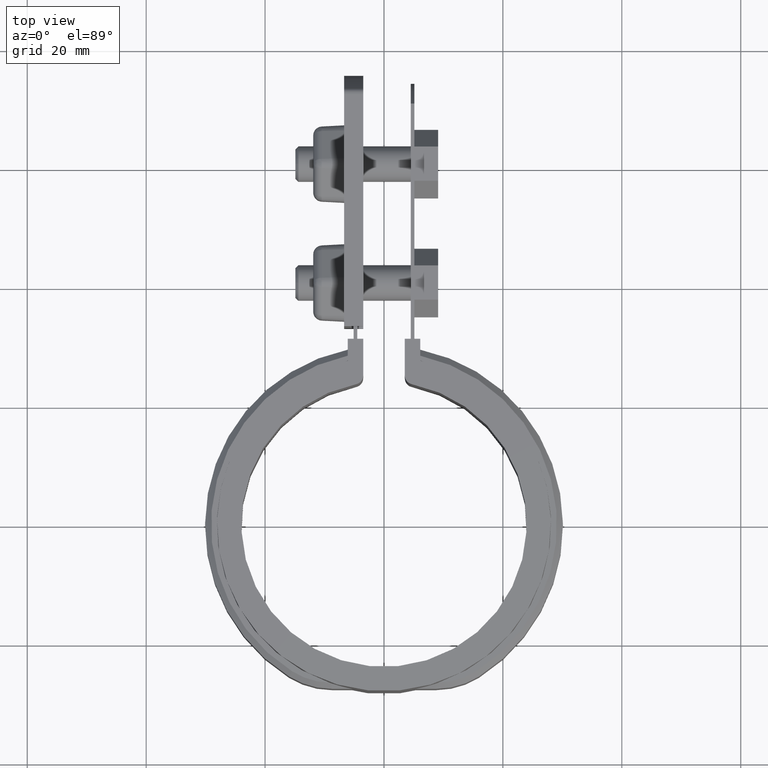
[diagram: clean part render]
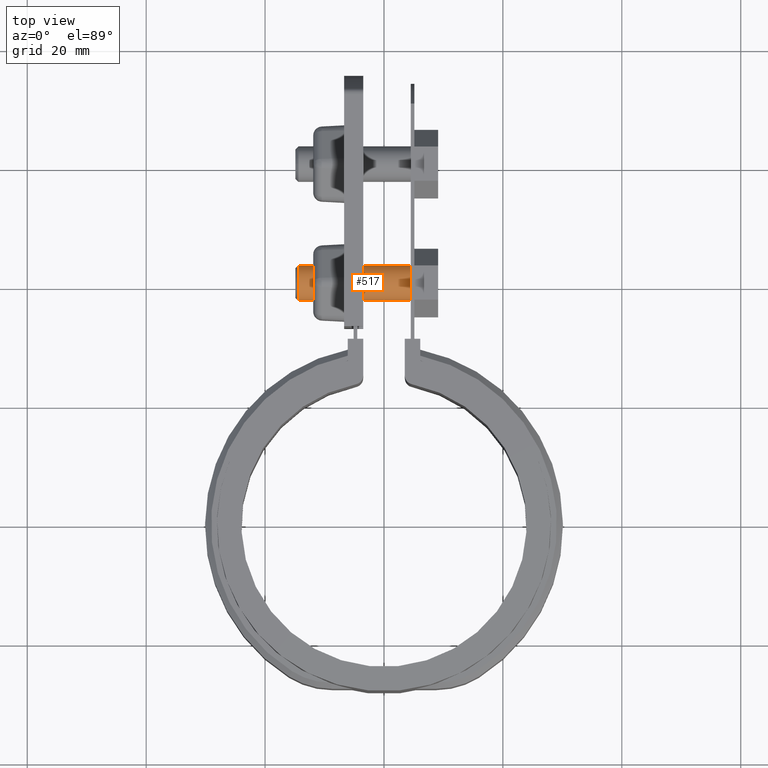
[diagram: same view with one face highlighted and labeled with its STEP entity id]
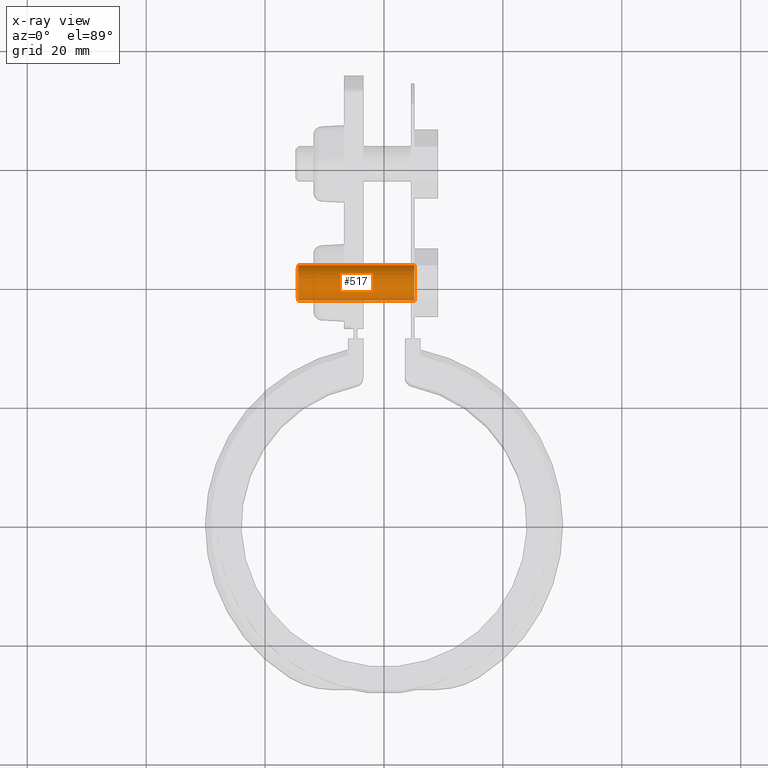
[diagram: x-ray of the same camera — body ghosted, the highlighted face saturated]
A machine part, top view. The second image highlights one B-rep face of the part: STEP entity #517.
The next image is the same camera in x-ray: the body ghosted, the highlighted face saturated — about 0% of this face is hidden behind the body in this view.
In plain terms, the highlighted cylindrical surface (bore or boss wall) has radius 3 mm, axis along (1, -0, 0).
Its self-contained STEP definition (entity closure, byte-faithful):
#517 = ADVANCED_FACE( '', ( #1050, #1051 ), #1052, .T. );
#1050 = FACE_OUTER_BOUND( '', #2422, .T. );
#1051 = FACE_OUTER_BOUND( '', #2423, .T. );
#1052 = CYLINDRICAL_SURFACE( '', #2424, 2.99999999999993 );
#2422 = EDGE_LOOP( '', ( #5479 ) );
#2423 = EDGE_LOOP( '', ( #5480 ) );
#2424 = AXIS2_PLACEMENT_3D( '', #5481, #5482, #5483 );
#5479 = ORIENTED_EDGE( '', *, *, #7573, .T. );
#5480 = ORIENTED_EDGE( '', *, *, #7567, .F. );
#5481 = CARTESIAN_POINT( '', ( 13.5487843911355, 40.7998007960223, -12.5000000000000 ) );
#5482 = DIRECTION( '', ( 1.00000000000000, -2.87890421855067E-116, 1.26897091865785E-116 ) );
#5483 = DIRECTION( '', ( 1.26897091865785E-116, 3.00462919747432E-016, -1.00000000000000 ) );
#7567 = EDGE_CURVE( '', #8832, #8832, #8833, .F. );
#7573 = EDGE_CURVE( '', #8842, #8842, #8843, .T. );
#8832 = VERTEX_POINT( '', #12370 );
#8833 = CIRCLE( '', #12371, 2.99999999999993 );
#8842 = VERTEX_POINT( '', #12385 );
#8843 = CIRCLE( '', #12386, 2.99999999999993 );
#12370 = CARTESIAN_POINT( '', ( 5.10000000000002, 40.7998007960223, -15.4999999999999 ) );
#12371 = AXIS2_PLACEMENT_3D( '', #14229, #14230, #14231 );
#12385 = CARTESIAN_POINT( '', ( -14.3999999999991, 40.7998007960223, -9.50000000000007 ) );
#12386 = AXIS2_PLACEMENT_3D( '', #14237, #14238, #14239 );
#14229 = CARTESIAN_POINT( '', ( 5.10000000000002, 40.7998007960223, -12.5000000000000 ) );
#14230 = DIRECTION( '', ( -1.00000000000000, 2.87890421855067E-116, -1.26897091865785E-116 ) );
#14231 = DIRECTION( '', ( 1.26897091865785E-116, 3.00462919747432E-016, -1.00000000000000 ) );
#14237 = CARTESIAN_POINT( '', ( -14.3999999999991, 40.7998007960223, -12.5000000000000 ) );
#14238 = DIRECTION( '', ( 1.00000000000000, -2.87890421855067E-116, 1.26897091865785E-116 ) );
#14239 = DIRECTION( '', ( -1.26897091865785E-116, -3.00462919747432E-016, 1.00000000000000 ) );